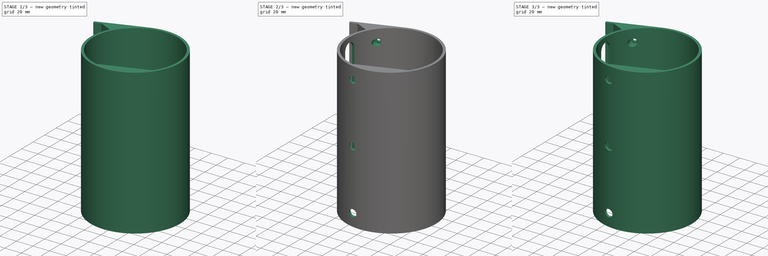
[diagram: build sequence overview — one tinted view per stage of 3, left to right]
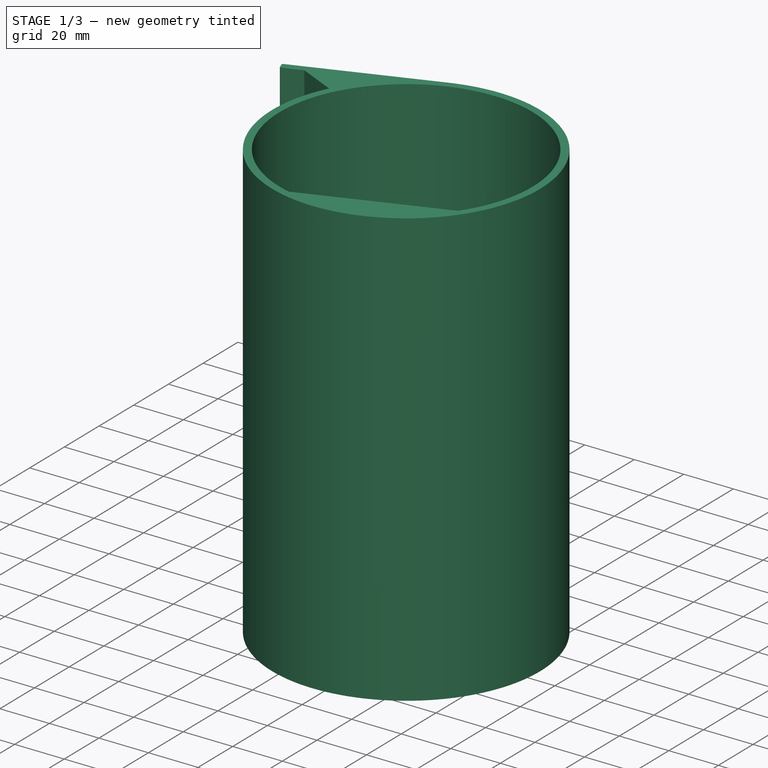
[diagram: stage 1 of 3 — iso view after this stage's code; geometry added in this stage tinted green]
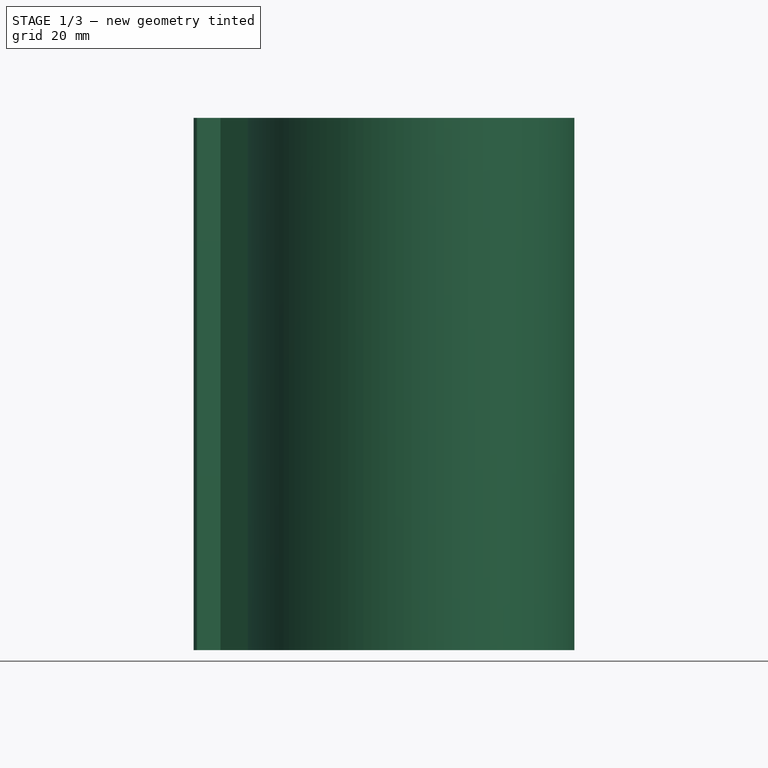
[diagram: stage 1 of 3 — front view after this stage's code; geometry added in this stage tinted green]
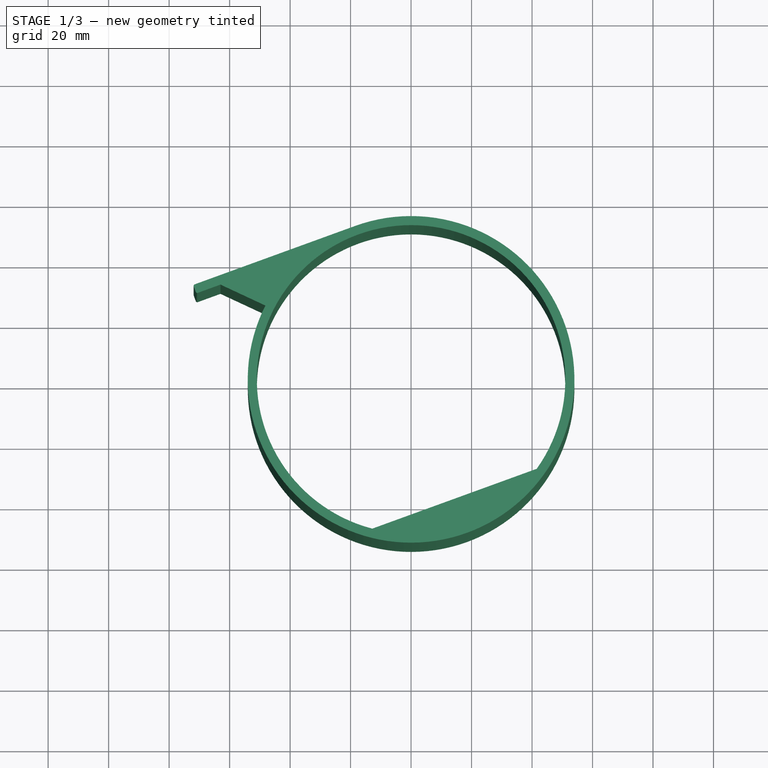
[diagram: stage 1 of 3 — top view after this stage's code; geometry added in this stage tinted green]
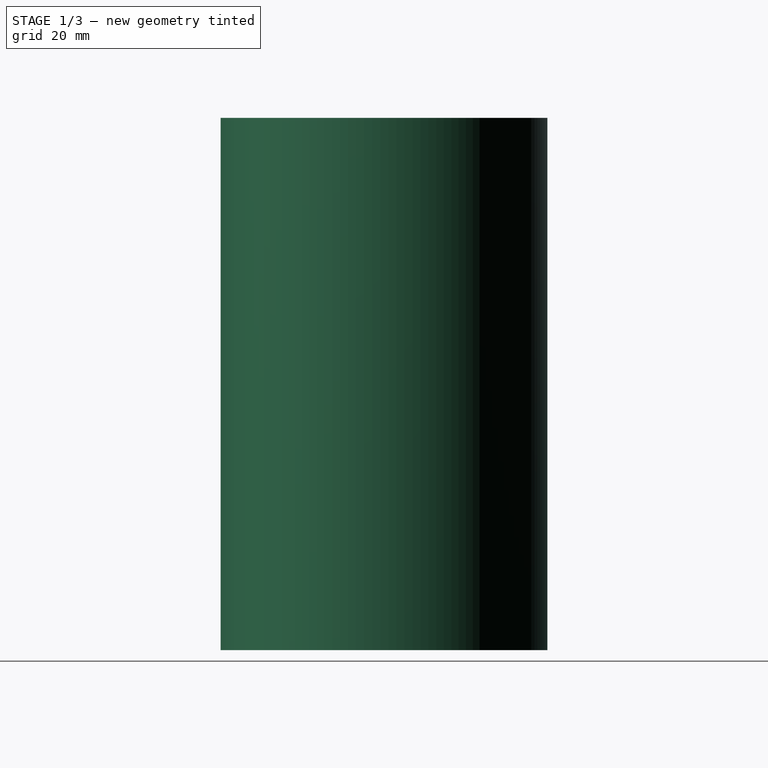
[diagram: stage 1 of 3 — right view after this stage's code; geometry added in this stage tinted green]
FCSTD DOCUMENT  (FreeCAD 0.17R13509 (Git))
Label: garbage_bag_dispenser
License: All rights reserved
LicenseURL: http://en.wikipedia.org/wiki/All_rights_reserved
objects: Sketcher::SketchObject×5, PartDesign::Pocket×3, PartDesign::Pad×2, PartDesign::Fillet×2, PartDesign::Body×1
note: 18 computed .brp shape members not serialized (recipe doc carries the construction recipe); baked Part::Feature solids carry a one-line shape summary decoded from their .brp

FEATURE [Sketcher::SketchObject] Sketch  label="shell_s"
  MapMode = 5
  sketch-geometry (14):
    g0: ArcOfCircle CenterX=0 CenterY=0 CenterZ=0 NormalX=0 NormalY=0 NormalZ=1 AngleXU=0 Radius=51 StartAngle=5.66465 EndAngle=10.7414
    g1: ArcOfCircle CenterX=0 CenterY=0 CenterZ=0 NormalX=0 NormalY=0 NormalZ=1 AngleXU=0 Radius=54 StartAngle=2.67252 EndAngle=8.20305
    g2: LineSegment StartX=-48.1673 StartY=24.4113 StartZ=0 EndX=-63.0181 EndY=31.3363 EndZ=0
    g3: LineSegment StartX=-63.0181 StartY=31.3363 StartZ=0 EndX=-70.5357 EndY=28.6002 EndZ=0
    g4: LineSegment StartX=-71.1765 StartY=28.899 StartZ=0 EndX=-71.8606 EndY=30.7784 EndZ=0
    g5: LineSegment StartX=-71.5617 StartY=31.4193 StartZ=0 EndX=-18.4691 EndY=50.7434 EndZ=0
    g6: ArcOfCircle CenterX=-71.3907 CenterY=30.9494 CenterZ=0 NormalX=0 NormalY=0 NormalZ=1 AngleXU=0 Radius=0.5 StartAngle=1.91986 EndAngle=3.49066
    g7: ArcOfCircle CenterX=-70.7067 CenterY=29.07 CenterZ=0 NormalX=0 NormalY=0 NormalZ=1 AngleXU=0 Radius=0.5 StartAngle=3.49066 EndAngle=5.06145
    g8: LineSegment [constr] StartX=-48.1673 StartY=24.4113 StartZ=0 EndX=-45.4913 EndY=23.0551 EndZ=0
    g9: LineSegment [constr] StartX=-63.0181 StartY=31.3363 StartZ=0 EndX=-64.0442 EndY=34.1554 EndZ=0
    g10: LineSegment StartX=-12.8214 StartY=-49.3621 StartZ=0 EndX=41.551 EndY=-29.5721 EndZ=0
    g11: LineSegment [constr] StartX=14.3648 StartY=-39.4671 StartZ=0 EndX=18.4691 EndY=-50.7434 EndZ=0
    g12: LineSegment [constr] StartX=-53.5625 StartY=-19.4951 StartZ=0 EndX=-71.1765 EndY=28.899 EndZ=0
    g13: LineSegment [constr] StartX=-50.7434 StartY=-18.4691 StartZ=0 EndX=-53.5625 EndY=-19.4951 EndZ=0
  constraints (41):
    c: Coincident(g0,g-1)
    c: Coincident(g1,g-1)
    c: Coincident(g3,g2)
    c: Parallel(g5,g3)
    c: Perpendicular(g5,g4)
    c: Coincident(g1,g2)
    c: Radius(g0) = 51  'center rad'
    c: Tangent(g1,g5) = 1.5708
    c: Tangent(g5,g6) = 1.5708
    c: Tangent(g4,g6) = 1.5708
    c: Tangent(g3,g7) = 1.5708
    c: Tangent(g4,g7) = 1.5708
    c: Equal(g7,g6)
    c: Radius(g6) = 0.5  'flange fillet'
    c: Coincident(g8,g1)
    c: PointOnObject(g8,g0)
    c: Perpendicular(g0,g8)
    c: Coincident(g9,g2)
    c: PointOnObject(g9,g5)
    c: Perpendicular(g5,g9)
    c: Equal(g9,g8)
    c: Distance(g9) = 3  'wall'
    c: Angle(g3,g2) = 2.35619  'support angle'
    c: Distance(g3) = 8  'flange underhang'
    c: Distance(g5) = 56.5  'flange length'
    c: Angle(g5,g-2) = 1.22173  'flange angle'
    c: Coincident(g0,g10)
    c: Coincident(g0,g10)
    c: Parallel(g10,g5)
    c: PointOnObject(g11,g1)
    c: PointOnObject(g11,g10)
    c: Perpendicular(g11,g10) = 1.5708
    c: Perpendicular(g11,g1) = 1.5708
    c: Distance(g11) = 12  'rail height'
    c: Coincident(g12,g4)
    c: Parallel(g12,g4)
    c: PointOnObject(g13,g1)
    c: Coincident(g13,g12)
    c: Perpendicular(g12,g13)
    c: Distance(g13) = 3  'flange overhang'
    c: Perpendicular(g13,g1) = 1.5708
FEATURE [Sketcher::SketchObject] Sketch001  label="slot_s"
  MapMode = 5
  Placement = pos=(0,0,0) rot=(0.57735,0.57735,0.57735;2.0944rad)
  Support = -> [YZ_Plane]
  sketch-geometry (6):
    g0: ArcOfCircle CenterX=-3e-12 CenterY=74 CenterZ=0 NormalX=0 NormalY=0 NormalZ=1 AngleXU=0 Radius=8 StartAngle=0 EndAngle=3.14159
    g1: ArcOfCircle CenterX=0 CenterY=-74 CenterZ=0 NormalX=0 NormalY=0 NormalZ=1 AngleXU=0 Radius=8 StartAngle=3.14159 EndAngle=6.28319
    g2: LineSegment StartX=-8 StartY=74 StartZ=0 EndX=-8 EndY=-74 EndZ=0
    g3: LineSegment StartX=8 StartY=74 StartZ=0 EndX=8 EndY=-74 EndZ=0
    g4: LineSegment [constr] StartX=0 StartY=82 StartZ=0 EndX=0 EndY=0 EndZ=0
    g5: LineSegment [constr] StartX=0 StartY=-82 StartZ=0 EndX=0 EndY=0 EndZ=0
  constraints (16):
    c: Vertical(g2)
    c: Tangent(g2,g1) = -1.5708
    c: Tangent(g3,g1) = 1.5708
    c: Tangent(g3,g0) = 1.5708
    c: Tangent(g2,g0) = -1.5708
    c: Vertical(g3)
    c: DistanceX(g0,g0) = 16  'slot width'
    c: Vertical(g4)
    c: Vertical(g5)
    c: Coincident(g5,g4)
    c: Coincident(g5,g-1)
    c: PointOnObject(g5,g1)
    c: PointOnObject(g4,g0)
    c: DistanceY(g5,g4) = 164  'slot length'
    c: Equal(g5,g4)
    c: PointOnObject(g1,g5)
FEATURE [PartDesign::Pad] Pad  label="shell"
  Length = 176
  Length2 = 100
  Midplane = true
  Profile = -> Sketch
  Type = 0
FEATURE [Sketcher::SketchObject] Sketch002  label="center_s"
  ExternalGeometry = -> [Pad]
  MapMode = 5
  Support = -> [XY_Plane]
  sketch-geometry (1):
    g0: Circle CenterX=0 CenterY=0 CenterZ=0 NormalX=0 NormalY=0 NormalZ=1 AngleXU=0 Radius=51
  constraints (2):
    c: Coincident(g0,g-1)
    c: Radius(g0) = 51  'radius'
FEATURE [PartDesign::Pocket] Pocket  label="center"
  BaseFeature = -> Pad
  Length = 170
  Length2 = 100
  Midplane = true
  Profile = -> Sketch002
  Type = 0
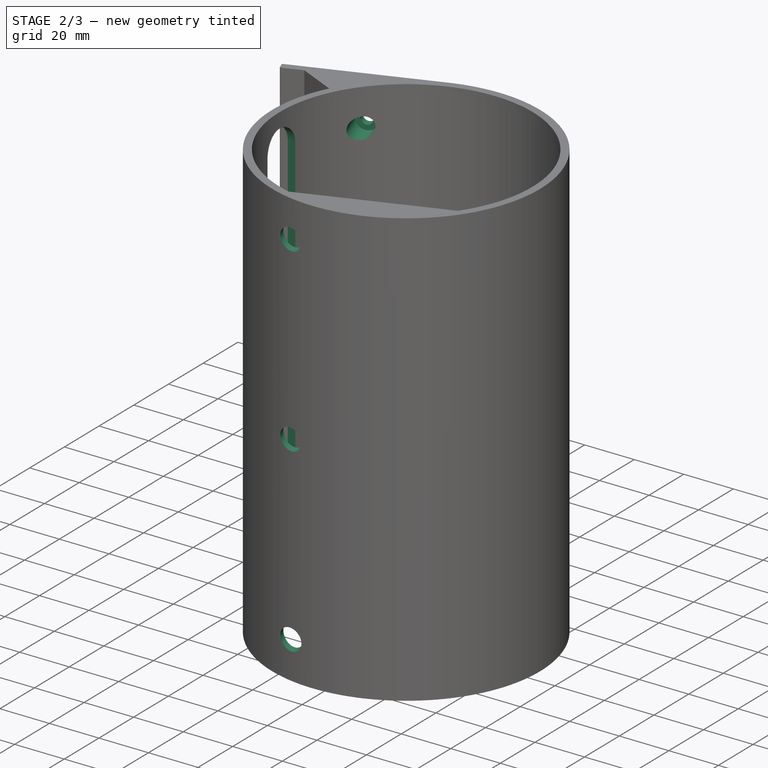
[diagram: stage 2 of 3 — iso view after this stage's code; geometry added in this stage tinted green]
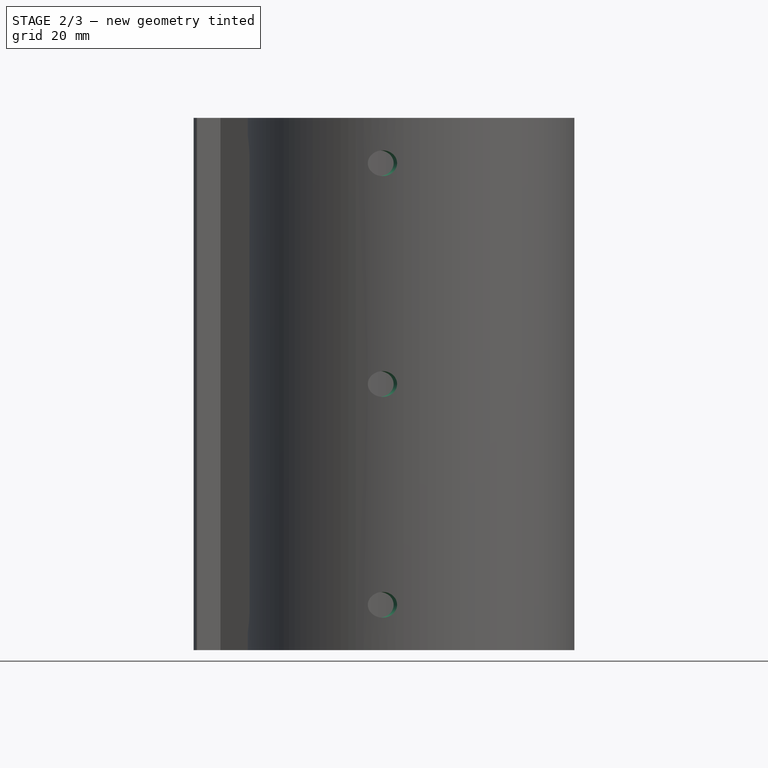
[diagram: stage 2 of 3 — front view after this stage's code; geometry added in this stage tinted green]
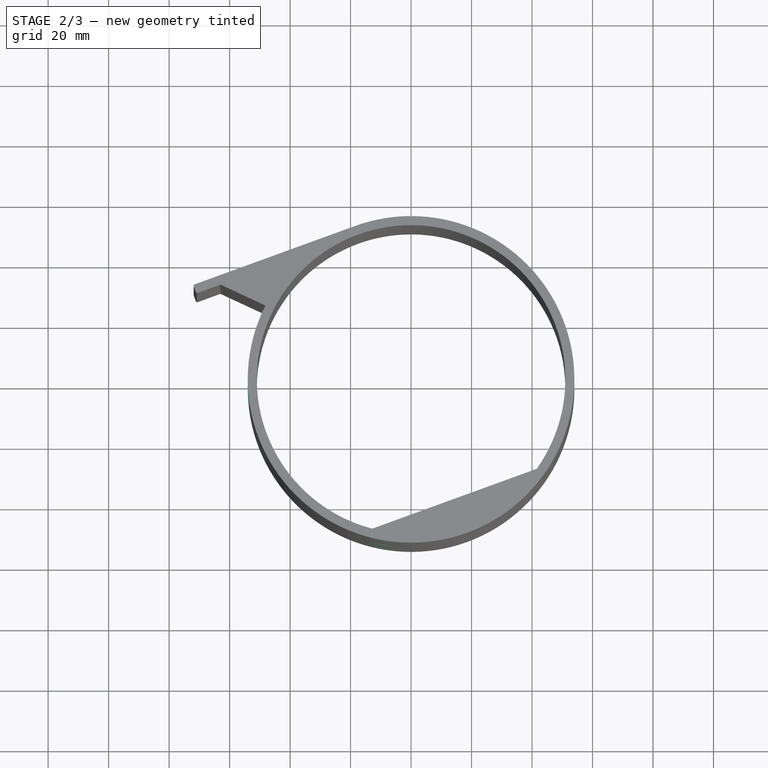
[diagram: stage 2 of 3 — top view after this stage's code; geometry added in this stage tinted green]
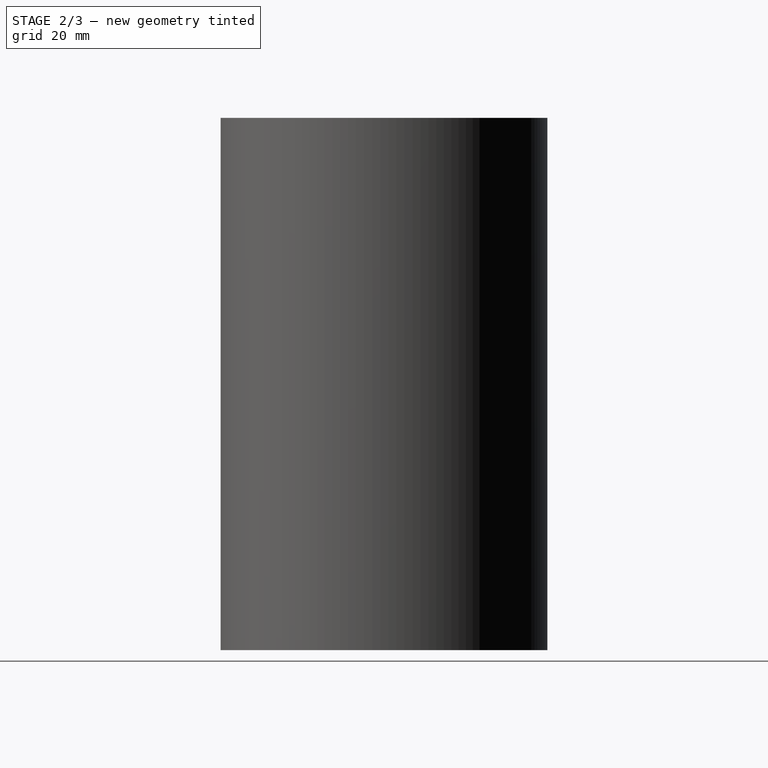
[diagram: stage 2 of 3 — right view after this stage's code; geometry added in this stage tinted green]
FEATURE [PartDesign::Pocket] Pocket001  label="slot"
  BaseFeature = -> Pocket
  Length = 5
  Length2 = 100
  Profile = -> Sketch001
  Type = 1
FEATURE [Sketcher::SketchObject] Sketch003  label="ports_s"
  ExternalGeometry = -> [Pocket001]
  MapMode = 5
  Placement = pos=(-18.4691,50.7434,0) rot=(-0.123724,0.701674,0.701674;3.38779rad)
  Support = -> [Pocket001]
  sketch-geometry (6):
    g0: Circle CenterX=27 CenterY=73 CenterZ=0 NormalX=0 NormalY=0 NormalZ=1 AngleXU=0 Radius=4.25
    g1: Circle CenterX=27 CenterY=0 CenterZ=0 NormalX=0 NormalY=0 NormalZ=1 AngleXU=0 Radius=4.25
    g2: Circle CenterX=27 CenterY=-73 CenterZ=0 NormalX=0 NormalY=0 NormalZ=1 AngleXU=0 Radius=4.25
    g3: LineSegment [constr] StartX=27 StartY=73 StartZ=0 EndX=27 EndY=0 EndZ=0
    g4: LineSegment [constr] StartX=27 StartY=-73 StartZ=0 EndX=27 EndY=0 EndZ=0
    g5: LineSegment [constr] StartX=27 StartY=0 StartZ=0 EndX=57 EndY=0 EndZ=0
  constraints (16):
    c: PointOnObject(g1,g-1)
    c: Coincident(g3,g0)
    c: Coincident(g3,g1)
    c: Vertical(g3)
    c: Coincident(g4,g2)
    c: Coincident(g4,g1)
    c: Vertical(g4)
    c: Equal(g3,g4)
    c: Equal(g1,g0)
    c: Equal(g0,g2)
    c: Coincident(g5,g1)
    c: PointOnObject(g5,g-1)
    c: Distance(g5) = 30  'offset'
    c: Radius(g0) = 4.25  'radius'
    c: DistanceY(g0,g-3) = 15  'edge offset'
    c: PointOnObject(g5,g-3)
FEATURE [PartDesign::Pocket] Pocket002  label="ports"
  BaseFeature = -> Pocket001
  Length = 5
  Length2 = 100
  Profile = -> Sketch003
  Type = 1
FEATURE [Sketcher::SketchObject] Sketch004  label="holes_s"
  ExternalGeometry = -> [Pocket002]
  MapMode = 5
  Placement = pos=(-18.4691,50.7434,0) rot=(-0.123724,0.701674,0.701674;3.38779rad)
  Support = -> [Pocket002]
  sketch-geometry (6):
    g0: Circle CenterX=27 CenterY=73 CenterZ=0 NormalX=0 NormalY=0 NormalZ=1 AngleXU=0 Radius=4.25
    g1: Circle CenterX=27 CenterY=0 CenterZ=0 NormalX=0 NormalY=0 NormalZ=1 AngleXU=0 Radius=4.25
    g2: Circle CenterX=27 CenterY=-73 CenterZ=0 NormalX=0 NormalY=0 NormalZ=1 AngleXU=0 Radius=4.25
    g3: Circle CenterX=27 CenterY=-73 CenterZ=0 NormalX=0 NormalY=0 NormalZ=1 AngleXU=0 Radius=2.25
    g4: Circle CenterX=27 CenterY=0 CenterZ=0 NormalX=0 NormalY=0 NormalZ=1 AngleXU=0 Radius=2.25
    g5: Circle CenterX=27 CenterY=73 CenterZ=0 NormalX=0 NormalY=0 NormalZ=1 AngleXU=0 Radius=2.25
  constraints (12):
    c: Equal(g5,g4)
    c: Equal(g4,g3)
    c: Radius(g5) = 2.25  'radius'
    c: Equal(g0,g-3)
    c: Equal(g1,g-4)
    c: Equal(g2,g-5)
    c: Coincident(g5,g-3)
    c: Coincident(g5,g0)
    c: Coincident(g1,g4)
    c: Coincident(g1,g-4)
    c: Coincident(g2,g3)
    c: Coincident(g2,g-5)
FEATURE [PartDesign::Pad] Pad001  label="holes"
  BaseFeature = -> Pocket002
  Length = 3
  Length2 = 100
  Profile = -> Sketch004
  Reversed = true
  Type = 0
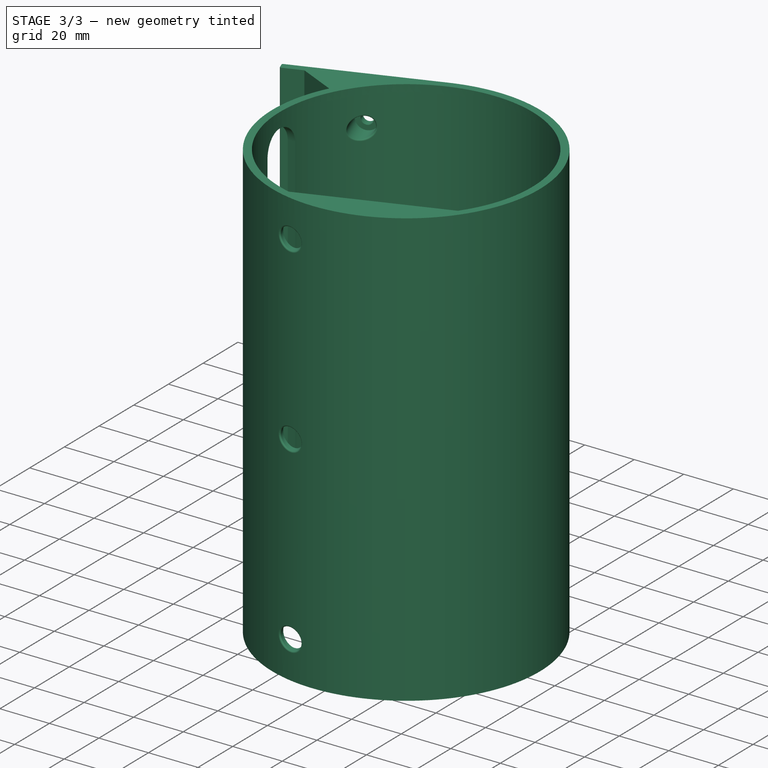
[diagram: stage 3 of 3 — iso view after this stage's code; geometry added in this stage tinted green]
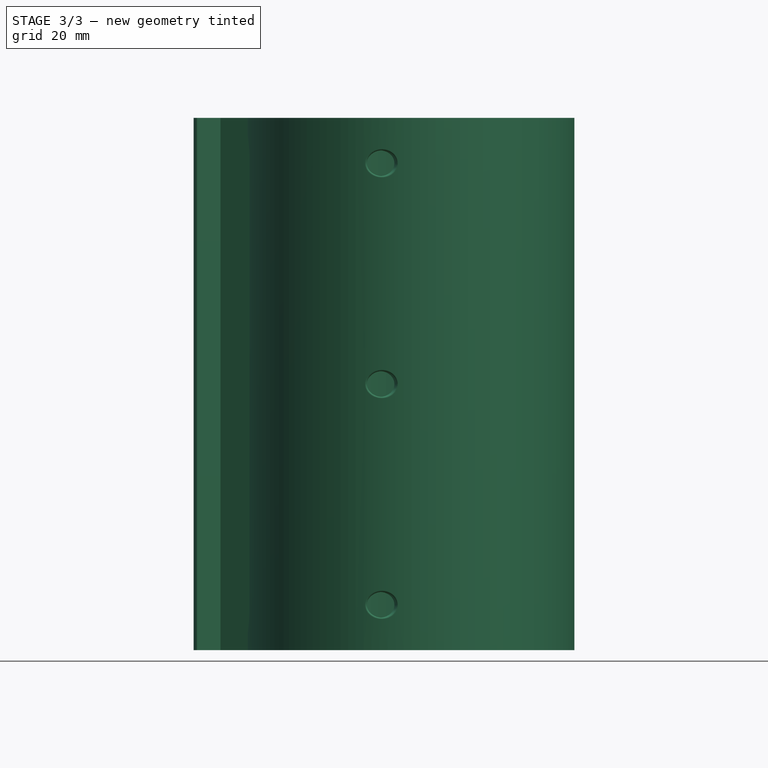
[diagram: stage 3 of 3 — front view after this stage's code; geometry added in this stage tinted green]
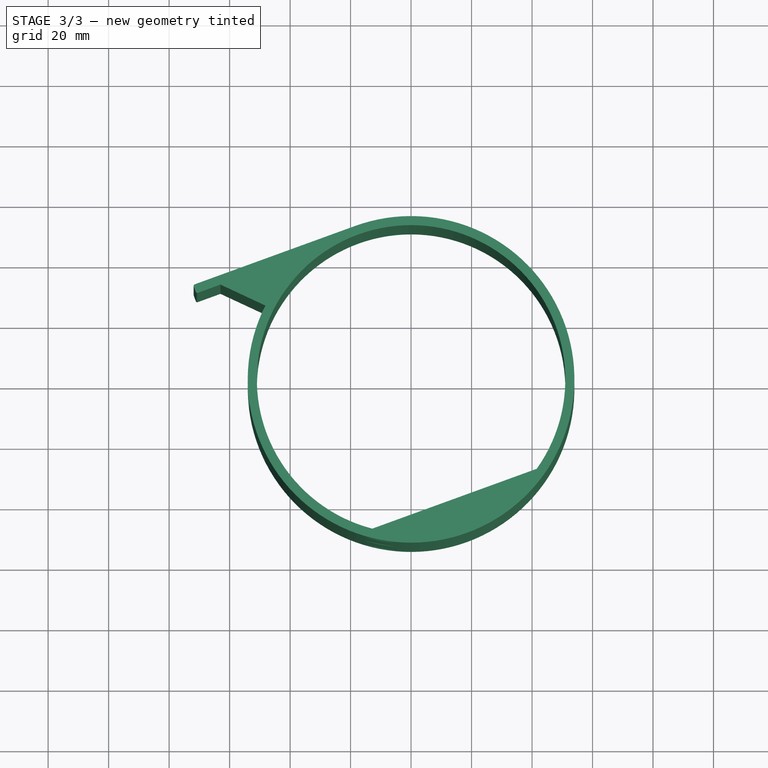
[diagram: stage 3 of 3 — top view after this stage's code; geometry added in this stage tinted green]
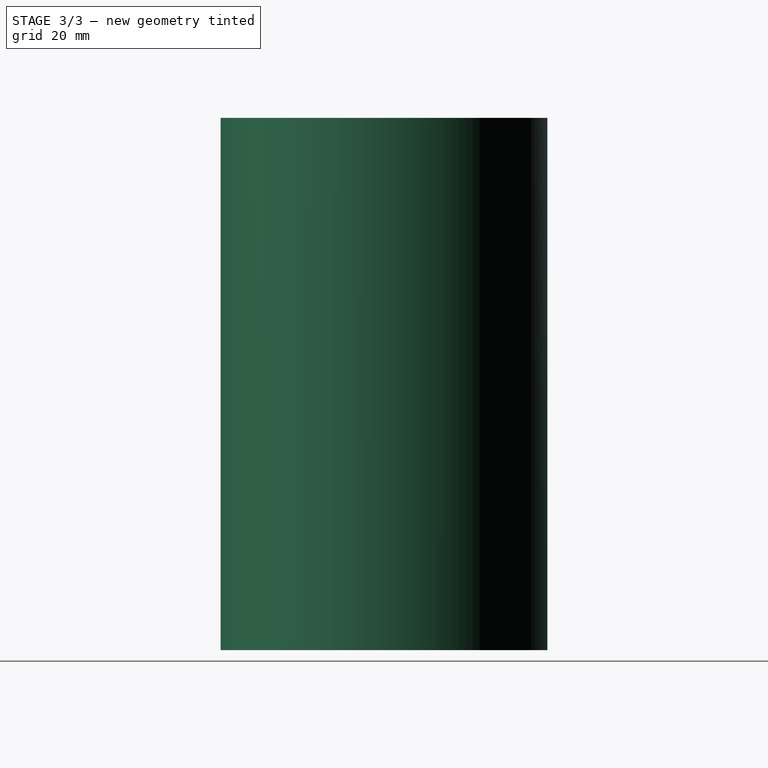
[diagram: stage 3 of 3 — right view after this stage's code; geometry added in this stage tinted green]
FEATURE [PartDesign::Fillet] Fillet  label="port fillet"
  Base = -> Pad001 [Face18,Face19,Face20]
  BaseFeature = -> Pad001
  Radius = 0.5
FEATURE [PartDesign::Fillet] Fillet001  label="hole fillet"
  Base = -> Fillet [Edge78,Edge79,Edge80]
  BaseFeature = -> Fillet
  Radius = 0.5
FEATURE [PartDesign::Body] Body  label="garbage_bag_dispenser"
  Group = -> [Sketch,Sketch001,Pad,Sketch002,Pocket,Pocket001,Sketch003,Pocket002,Sketch004,Pad001,Fillet,Fillet001]
  Origin = -> Origin
  Tip = -> Fillet001
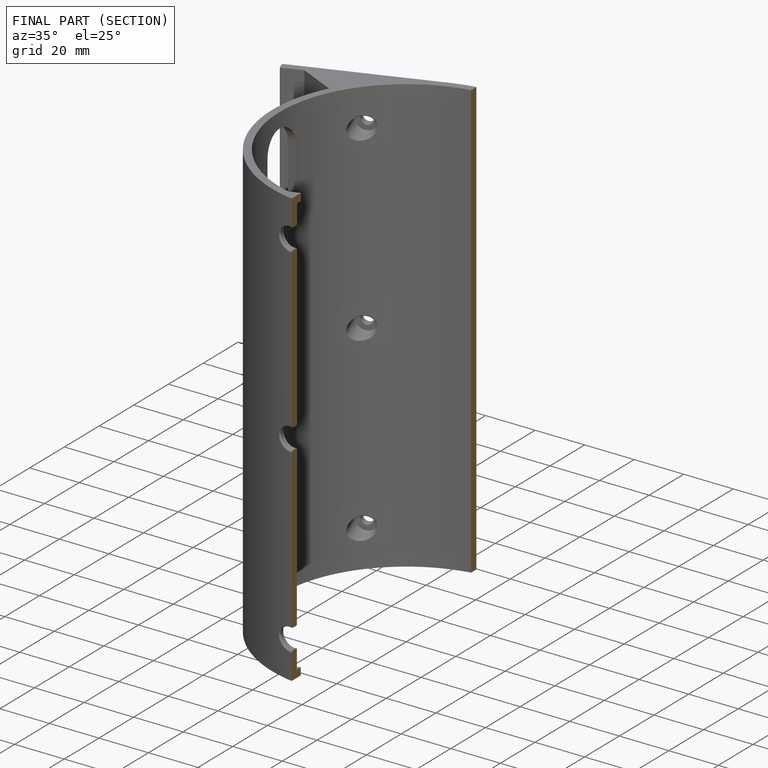
[diagram: finished part — half-section view (interior)]
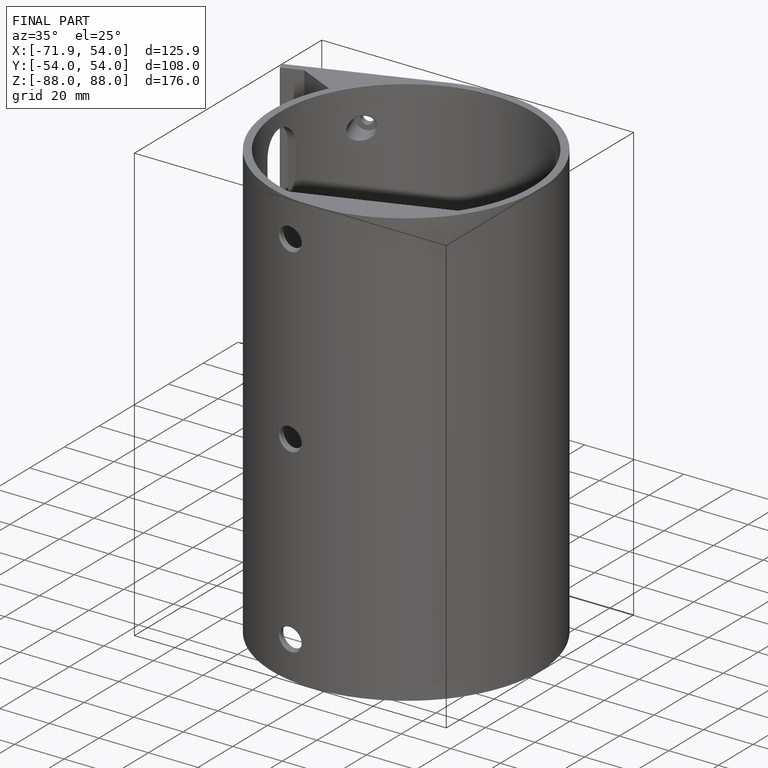
[diagram: finished part — iso view with bounding-box wireframe]
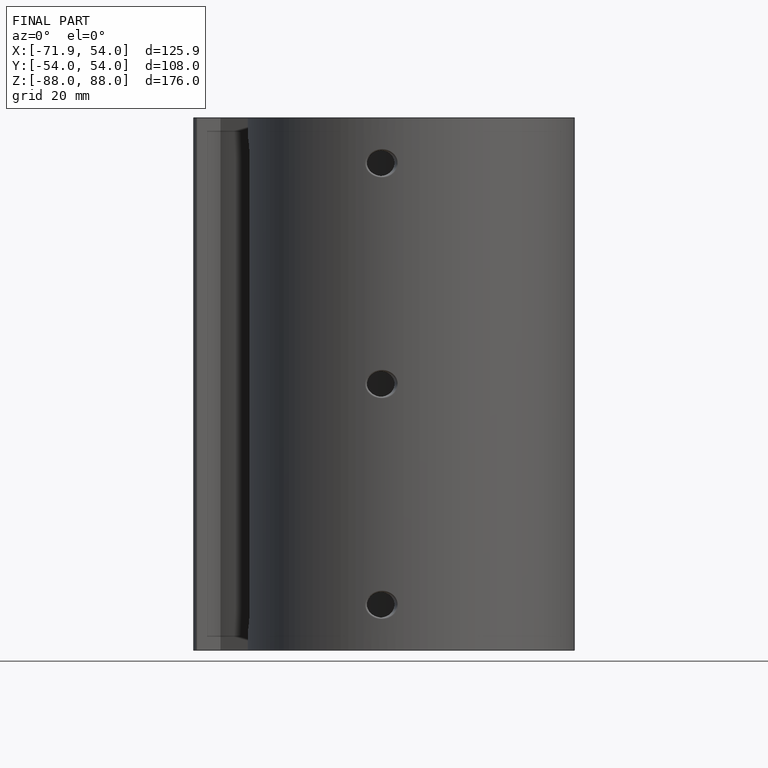
[diagram: finished part — front view with bounding-box wireframe]
